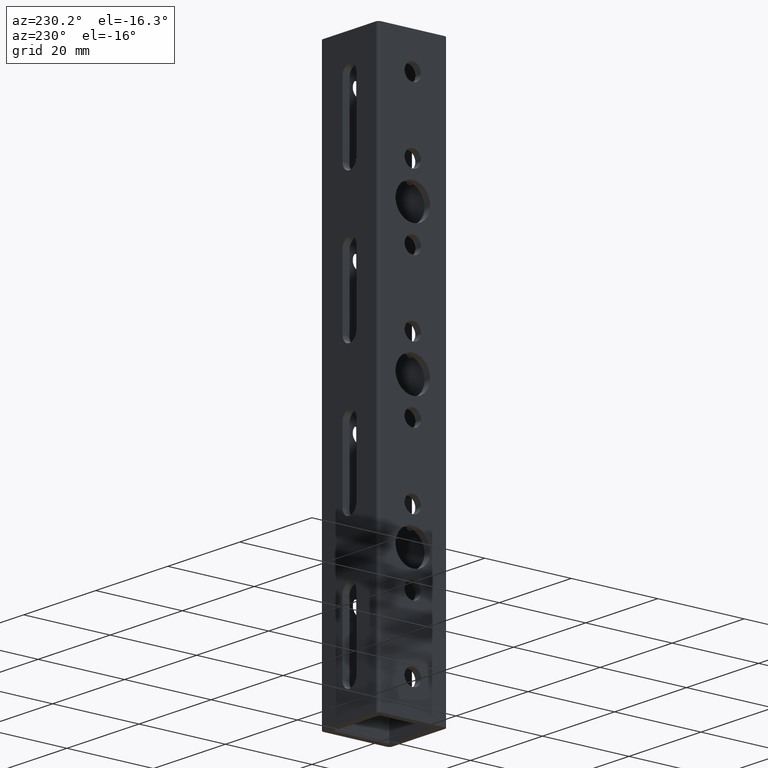
[diagram: clean part render]
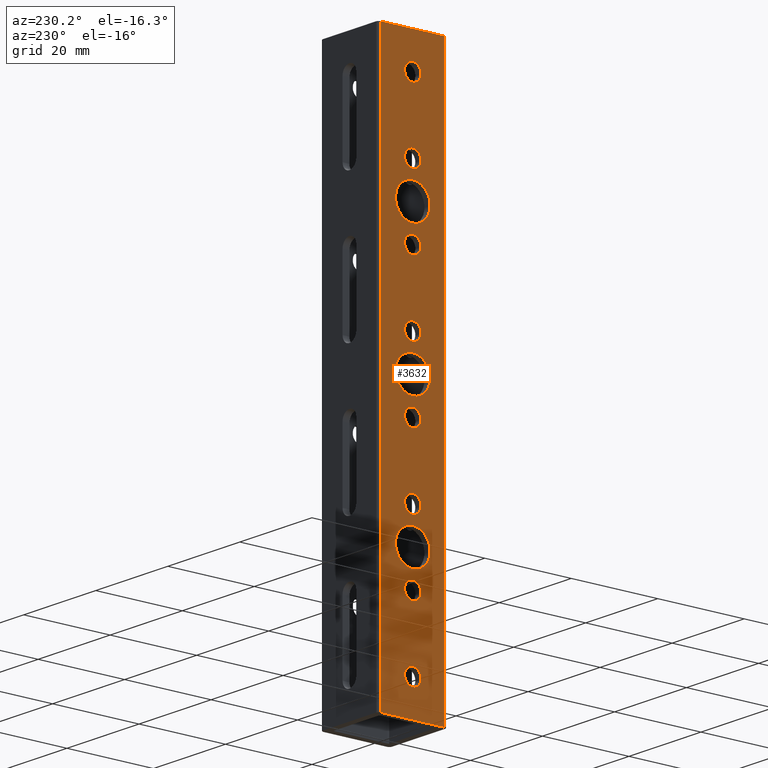
[diagram: same view with one face highlighted and labeled with its STEP entity id]
A machine part, auxiliary view. The second image highlights one B-rep face of the part: STEP entity #3632.
In plain terms, the highlighted planar face has unit normal (1, 0, 0).
Its self-contained STEP definition (entity closure, byte-faithful):
#9 = ORIENTED_EDGE ( 'NONE', *, *, #1773, .T. ) ;
#31 = CARTESIAN_POINT ( 'NONE',  ( -0.3149606299212600000, -0.3149606299212599500, 5.039370078740157400 ) ) ;
#32 = DIRECTION ( 'NONE',  ( 1.000000000000000000, 0.0000000000000000000, 0.0000000000000000000 ) ) ;
#61 = DIRECTION ( 'NONE',  ( 1.000000000000000000, 0.0000000000000000000, 0.0000000000000000000 ) ) ;
#84 = EDGE_CURVE ( 'NONE', #363, #1579, #3250, .T. ) ;
#119 = VERTEX_POINT ( 'NONE', #1013 ) ;
#138 = FACE_BOUND ( 'NONE', #2146, .T. ) ;
#147 = DIRECTION ( 'NONE',  ( 1.000000000000000000, 0.0000000000000000000, 0.0000000000000000000 ) ) ;
#159 = AXIS2_PLACEMENT_3D ( 'NONE', #2247, #860, #3375 ) ;
#165 = DIRECTION ( 'NONE',  ( 0.0000000000000000000, 1.000000000000000000, 0.0000000000000000000 ) ) ;
#174 = VERTEX_POINT ( 'NONE', #1594 ) ;
#225 = EDGE_CURVE ( 'NONE', #256, #302, #2800, .T. ) ;
#226 = DIRECTION ( 'NONE',  ( 1.000000000000000000, 0.0000000000000000000, 0.0000000000000000000 ) ) ;
#239 = FACE_OUTER_BOUND ( 'NONE', #2460, .T. ) ;
#241 = DIRECTION ( 'NONE',  ( 1.000000000000000000, 0.0000000000000000000, 0.0000000000000000000 ) ) ;
#242 = AXIS2_PLACEMENT_3D ( 'NONE', #2011, #32, #2567 ) ;
#251 = VERTEX_POINT ( 'NONE', #1363 ) ;
#256 = VERTEX_POINT ( 'NONE', #795 ) ;
#257 = EDGE_CURVE ( 'NONE', #2811, #2419, #2710, .T. ) ;
#278 = VERTEX_POINT ( 'NONE', #1938 ) ;
#288 = DIRECTION ( 'NONE',  ( 0.0000000000000000000, 0.0000000000000000000, -1.000000000000000000 ) ) ;
#294 = ORIENTED_EDGE ( 'NONE', *, *, #980, .T. ) ;
#302 = VERTEX_POINT ( 'NONE', #1146 ) ;
#318 = AXIS2_PLACEMENT_3D ( 'NONE', #3647, #1974, #288 ) ;
#340 = FACE_BOUND ( 'NONE', #2234, .T. ) ;
#343 = CARTESIAN_POINT ( 'NONE',  ( -0.3149606299212600000, -7.714310547738678500E-017, 0.8698818900000001600 ) ) ;
#350 = AXIS2_PLACEMENT_3D ( 'NONE', #2590, #924, #2875 ) ;
#363 = VERTEX_POINT ( 'NONE', #2739 ) ;
#398 = AXIS2_PLACEMENT_3D ( 'NONE', #688, #2649, #972 ) ;
#435 = VERTEX_POINT ( 'NONE', #3105 ) ;
#448 = ORIENTED_EDGE ( 'NONE', *, *, #84, .T. ) ;
#471 = AXIS2_PLACEMENT_3D ( 'NONE', #1688, #226, #2186 ) ;
#480 = CARTESIAN_POINT ( 'NONE',  ( -0.3149606299212600000, -3.765306763933287800E-016, 3.539566930000001200 ) ) ;
#520 = DIRECTION ( 'NONE',  ( 1.000000000000000000, 0.0000000000000000000, 0.0000000000000000000 ) ) ;
#535 = AXIS2_PLACEMENT_3D ( 'NONE', #2041, #61, #1758 ) ;
#537 = DIRECTION ( 'NONE',  ( 0.0000000000000000000, 0.0000000000000000000, -1.000000000000000000 ) ) ;
#540 = EDGE_LOOP ( 'NONE', ( #448, #584 ) ) ;
#584 = ORIENTED_EDGE ( 'NONE', *, *, #2141, .T. ) ;
#588 = CIRCLE ( 'NONE', #398, 0.07500000007529962500 ) ;
#604 = ORIENTED_EDGE ( 'NONE', *, *, #1543, .T. ) ;
#608 = DIRECTION ( 'NONE',  ( 1.000000000000000000, 0.0000000000000000000, 0.0000000000000000000 ) ) ;
#609 = PLANE ( 'NONE',  #242 ) ;
#623 = VECTOR ( 'NONE', #2750, 39.37007874015748100 ) ;
#669 = EDGE_LOOP ( 'NONE', ( #2366, #604 ) ) ;
#670 = FACE_BOUND ( 'NONE', #1135, .T. ) ;
#683 = LINE ( 'NONE', #3635, #2004 ) ;
#688 = CARTESIAN_POINT ( 'NONE',  ( -0.3149606299212600000, 0.0000000000000000000, 0.3149606300000000700 ) ) ;
#702 = ORIENTED_EDGE ( 'NONE', *, *, #3198, .T. ) ;
#707 = ORIENTED_EDGE ( 'NONE', *, *, #2825, .T. ) ;
#711 = EDGE_CURVE ( 'NONE', #2393, #119, #2485, .T. ) ;
#733 = CARTESIAN_POINT ( 'NONE',  ( -0.3149606299212600000, -4.628586328643206600E-016, 4.094488190000000700 ) ) ;
#781 = CARTESIAN_POINT ( 'NONE',  ( -0.3149606299212600000, 0.2899606299212598700, 17.63779527559055200 ) ) ;
#795 = CARTESIAN_POINT ( 'NONE',  ( -0.3149606299212600000, -2.993875709159420200E-016, 2.909645670000000200 ) ) ;
#801 = CARTESIAN_POINT ( 'NONE',  ( -0.3149606299212600000, -3.086109933851330200E-016, 3.779842519999999900 ) ) ;
#847 = AXIS2_PLACEMENT_3D ( 'NONE', #1928, #2199, #537 ) ;
#860 = DIRECTION ( 'NONE',  ( 1.000000000000000000, 0.0000000000000000000, 0.0000000000000000000 ) ) ;
#896 = CARTESIAN_POINT ( 'NONE',  ( -0.3149606299212600000, 0.0000000000000000000, 0.2399606299247004400 ) ) ;
#897 = EDGE_CURVE ( 'NONE', #174, #1233, #1210, .T. ) ;
#910 = DIRECTION ( 'NONE',  ( 1.000000000000000000, 0.0000000000000000000, 0.0000000000000000000 ) ) ;
#922 = EDGE_CURVE ( 'NONE', #2419, #2811, #1042, .T. ) ;
#924 = DIRECTION ( 'NONE',  ( 1.000000000000000000, 0.0000000000000000000, 0.0000000000000000000 ) ) ;
#948 = LINE ( 'NONE', #31, #2347 ) ;
#972 = DIRECTION ( 'NONE',  ( 0.0000000000000000000, 0.0000000000000000000, -1.000000000000000000 ) ) ;
#980 = EDGE_CURVE ( 'NONE', #1767, #2156, #948, .T. ) ;
#981 = CIRCLE ( 'NONE', #1516, 0.1574803149606297800 ) ;
#987 = CIRCLE ( 'NONE', #2830, 0.07500000000000015000 ) ;
#990 = DIRECTION ( 'NONE',  ( 1.000000000000000000, 0.0000000000000000000, 0.0000000000000000000 ) ) ;
#993 = CIRCLE ( 'NONE', #350, 0.1574803149606297800 ) ;
#1001 = FACE_BOUND ( 'NONE', #3559, .T. ) ;
#1013 = CARTESIAN_POINT ( 'NONE',  ( -0.3149606299212600000, -5.308168873481023500E-016, 4.799409450000000600 ) ) ;
#1029 = DIRECTION ( 'NONE',  ( 1.000000000000000000, 0.0000000000000000000, 0.0000000000000000000 ) ) ;
#1042 = CIRCLE ( 'NONE', #3335, 0.1574803149606299200 ) ;
#1047 = VERTEX_POINT ( 'NONE', #1880 ) ;
#1071 = ORIENTED_EDGE ( 'NONE', *, *, #2237, .T. ) ;
#1078 = CARTESIAN_POINT ( 'NONE',  ( -0.3149606299212600000, 0.2899606299212598700, 5.039370078740157400 ) ) ;
#1080 = CIRCLE ( 'NONE', #2140, 0.1574803149606295300 ) ;
#1087 = DIRECTION ( 'NONE',  ( 0.0000000000000000000, 0.0000000000000000000, -1.000000000000000000 ) ) ;
#1091 = FACE_BOUND ( 'NONE', #1324, .T. ) ;
#1093 = DIRECTION ( 'NONE',  ( 0.0000000000000000000, 0.0000000000000000000, -1.000000000000000000 ) ) ;
#1109 = CARTESIAN_POINT ( 'NONE',  ( -0.3149606299212600000, -2.222444654385552100E-016, 2.279724410000000000 ) ) ;
#1125 = CIRCLE ( 'NONE', #2214, 0.1574803149606295300 ) ;
#1135 = EDGE_LOOP ( 'NONE', ( #3418, #1402 ) ) ;
#1146 = CARTESIAN_POINT ( 'NONE',  ( -0.3149606299212600000, -3.085724219095471400E-016, 2.759645670000001200 ) ) ;
#1159 = EDGE_CURVE ( 'NONE', #435, #3305, #2561, .T. ) ;
#1210 = CIRCLE ( 'NONE', #2197, 0.07500000000000015000 ) ;
#1233 = VERTEX_POINT ( 'NONE', #480 ) ;
#1235 = EDGE_LOOP ( 'NONE', ( #2481, #702 ) ) ;
#1236 = DIRECTION ( 'NONE',  ( 0.0000000000000000000, 0.0000000000000000000, -1.000000000000000000 ) ) ;
#1250 = CARTESIAN_POINT ( 'NONE',  ( -0.3149606299212600000, -7.714310547738678500E-017, 0.9448818900000001100 ) ) ;
#1267 = EDGE_LOOP ( 'NONE', ( #3079, #1366 ) ) ;
#1281 = ORIENTED_EDGE ( 'NONE', *, *, #922, .T. ) ;
#1286 = ORIENTED_EDGE ( 'NONE', *, *, #2165, .T. ) ;
#1291 = DIRECTION ( 'NONE',  ( 1.000000000000000000, 0.0000000000000000000, 0.0000000000000000000 ) ) ;
#1305 = DIRECTION ( 'NONE',  ( 1.000000000000000000, 0.0000000000000000000, 0.0000000000000000000 ) ) ;
#1324 = EDGE_LOOP ( 'NONE', ( #2801, #1748 ) ) ;
#1347 = DIRECTION ( 'NONE',  ( 0.0000000000000000000, 0.0000000000000000000, -1.000000000000000000 ) ) ;
#1358 = DIRECTION ( 'NONE',  ( 1.000000000000000000, 0.0000000000000000000, 0.0000000000000000000 ) ) ;
#1361 = CARTESIAN_POINT ( 'NONE',  ( -0.3149606299212600000, -3.085724219095471400E-016, 2.834645670000000500 ) ) ;
#1363 = CARTESIAN_POINT ( 'NONE',  ( -0.3149606299212600000, -3.086109933851330200E-016, 3.622362205039370700 ) ) ;
#1366 = ORIENTED_EDGE ( 'NONE', *, *, #2429, .T. ) ;
#1379 = CIRCLE ( 'NONE', #318, 0.07499999999999988600 ) ;
#1396 = ORIENTED_EDGE ( 'NONE', *, *, #1609, .T. ) ;
#1402 = ORIENTED_EDGE ( 'NONE', *, *, #2200, .T. ) ;
#1434 = VERTEX_POINT ( 'NONE', #2385 ) ;
#1477 = VERTEX_POINT ( 'NONE', #1109 ) ;
#1490 = ORIENTED_EDGE ( 'NONE', *, *, #257, .T. ) ;
#1516 = AXIS2_PLACEMENT_3D ( 'NONE', #1839, #147, #2117 ) ;
#1522 = EDGE_CURVE ( 'NONE', #302, #256, #2921, .T. ) ;
#1527 = DIRECTION ( 'NONE',  ( 1.000000000000000000, 0.0000000000000000000, 0.0000000000000000000 ) ) ;
#1543 = EDGE_CURVE ( 'NONE', #119, #2393, #2833, .T. ) ;
#1579 = VERTEX_POINT ( 'NONE', #2258 ) ;
#1594 = CARTESIAN_POINT ( 'NONE',  ( -0.3149606299212600000, -3.857155273869339500E-016, 3.389566930000000900 ) ) ;
#1609 = EDGE_CURVE ( 'NONE', #3478, #1767, #683, .T. ) ;
#1656 = CARTESIAN_POINT ( 'NONE',  ( -0.3149606299212600000, -3.857155273869339500E-016, 3.464566930000001000 ) ) ;
#1688 = CARTESIAN_POINT ( 'NONE',  ( -0.3149606299212600000, -3.085724219095471400E-016, 2.834645670000000500 ) ) ;
#1709 = EDGE_CURVE ( 'NONE', #2656, #3206, #2657, .T. ) ;
#1714 = CARTESIAN_POINT ( 'NONE',  ( -0.3149606299212600000, -1.543054966925665100E-016, 2.362362205039370000 ) ) ;
#1721 = ORIENTED_EDGE ( 'NONE', *, *, #225, .T. ) ;
#1726 = AXIS2_PLACEMENT_3D ( 'NONE', #1250, #1527, #3277 ) ;
#1746 = FACE_BOUND ( 'NONE', #2323, .T. ) ;
#1748 = ORIENTED_EDGE ( 'NONE', *, *, #2475, .T. ) ;
#1758 = DIRECTION ( 'NONE',  ( 0.0000000000000000000, 0.0000000000000000000, -1.000000000000000000 ) ) ;
#1767 = VERTEX_POINT ( 'NONE', #2600 ) ;
#1773 = EDGE_CURVE ( 'NONE', #3305, #435, #2207, .T. ) ;
#1780 = VECTOR ( 'NONE', #1956, 39.37007874015748100 ) ;
#1816 = AXIS2_PLACEMENT_3D ( 'NONE', #733, #2694, #1347 ) ;
#1839 = CARTESIAN_POINT ( 'NONE',  ( -0.3149606299212600000, -1.543054966925665100E-016, 2.519842520000000100 ) ) ;
#1870 = CARTESIAN_POINT ( 'NONE',  ( -0.3149606299212600000, -5.400017383417074700E-016, 4.724409450000000500 ) ) ;
#1880 = CARTESIAN_POINT ( 'NONE',  ( -0.3149606299212600000, 9.184851002826689300E-018, 0.3899606300752996900 ) ) ;
#1928 = CARTESIAN_POINT ( 'NONE',  ( -0.3149606299212600000, 0.0000000000000000000, 1.259842520000000300 ) ) ;
#1931 = CARTESIAN_POINT ( 'NONE',  ( -0.3149606299212600000, -7.714310547738678500E-017, 0.9448818900000001100 ) ) ;
#1933 = DIRECTION ( 'NONE',  ( 0.0000000000000000000, 0.0000000000000000000, -1.000000000000000000 ) ) ;
#1938 = CARTESIAN_POINT ( 'NONE',  ( -0.3149606299212600000, -1.350197203280413000E-016, 2.677322834960629700 ) ) ;
#1949 = CARTESIAN_POINT ( 'NONE',  ( -0.3149606299212600000, -0.2899606299212599300, 0.0000000000000000000 ) ) ;
#1956 = DIRECTION ( 'NONE',  ( -0.0000000000000000000, -1.000000000000000000, -0.0000000000000000000 ) ) ;
#1962 = AXIS2_PLACEMENT_3D ( 'NONE', #3046, #1358, #3321 ) ;
#1974 = DIRECTION ( 'NONE',  ( 1.000000000000000000, 0.0000000000000000000, 0.0000000000000000000 ) ) ;
#1987 = FACE_BOUND ( 'NONE', #1267, .T. ) ;
#2004 = VECTOR ( 'NONE', #2998, 39.37007874015748100 ) ;
#2011 = CARTESIAN_POINT ( 'NONE',  ( -0.3149606299212600000, -0.3149606299212599500, 17.63779527559055200 ) ) ;
#2041 = CARTESIAN_POINT ( 'NONE',  ( -0.3149606299212600000, -4.628586328643206600E-016, 4.094488190000000700 ) ) ;
#2074 = ORIENTED_EDGE ( 'NONE', *, *, #3279, .T. ) ;
#2117 = DIRECTION ( 'NONE',  ( 0.0000000000000000000, 0.0000000000000000000, -1.000000000000000000 ) ) ;
#2140 = AXIS2_PLACEMENT_3D ( 'NONE', #801, #2763, #1093 ) ;
#2141 = EDGE_CURVE ( 'NONE', #1579, #363, #3401, .T. ) ;
#2146 = EDGE_LOOP ( 'NONE', ( #3264, #1721 ) ) ;
#2156 = VERTEX_POINT ( 'NONE', #1078 ) ;
#2159 = CARTESIAN_POINT ( 'NONE',  ( -0.3149606299212600000, 0.2899606299212598700, 0.0000000000000000000 ) ) ;
#2165 = EDGE_CURVE ( 'NONE', #2505, #251, #1080, .T. ) ;
#2182 = CARTESIAN_POINT ( 'NONE',  ( -0.3149606299212600000, -2.314293164321603300E-016, 2.204724410000000300 ) ) ;
#2186 = DIRECTION ( 'NONE',  ( 0.0000000000000000000, 0.0000000000000000000, -1.000000000000000000 ) ) ;
#2197 = AXIS2_PLACEMENT_3D ( 'NONE', #2865, #910, #3430 ) ;
#2199 = DIRECTION ( 'NONE',  ( 1.000000000000000000, 0.0000000000000000000, 0.0000000000000000000 ) ) ;
#2200 = EDGE_CURVE ( 'NONE', #3206, #2656, #2478, .T. ) ;
#2202 = DIRECTION ( 'NONE',  ( 0.0000000000000000000, 0.0000000000000000000, -1.000000000000000000 ) ) ;
#2207 = CIRCLE ( 'NONE', #535, 0.07500000000000015000 ) ;
#2214 = AXIS2_PLACEMENT_3D ( 'NONE', #2667, #990, #2946 ) ;
#2234 = EDGE_LOOP ( 'NONE', ( #3303, #9 ) ) ;
#2237 = EDGE_CURVE ( 'NONE', #3376, #3478, #3270, .T. ) ;
#2247 = CARTESIAN_POINT ( 'NONE',  ( -0.3149606299212600000, -5.400017383417074700E-016, 4.724409450000000500 ) ) ;
#2258 = CARTESIAN_POINT ( 'NONE',  ( -0.3149606299212600000, -1.451013599611683800E-016, 1.649803150000000300 ) ) ;
#2259 = AXIS2_PLACEMENT_3D ( 'NONE', #2182, #520, #2476 ) ;
#2280 = CARTESIAN_POINT ( 'NONE',  ( -0.3149606299212600000, 0.0000000000000000000, 1.259842520000000300 ) ) ;
#2302 = AXIS2_PLACEMENT_3D ( 'NONE', #1361, #3602, #1087 ) ;
#2323 = EDGE_LOOP ( 'NONE', ( #2074, #2407 ) ) ;
#2335 = AXIS2_PLACEMENT_3D ( 'NONE', #1931, #241, #2202 ) ;
#2347 = VECTOR ( 'NONE', #165, 39.37007874015748100 ) ;
#2366 = ORIENTED_EDGE ( 'NONE', *, *, #711, .T. ) ;
#2367 = CARTESIAN_POINT ( 'NONE',  ( -0.3149606299212600000, 0.0000000000000000000, 1.102362205039370200 ) ) ;
#2385 = CARTESIAN_POINT ( 'NONE',  ( -0.3149606299212600000, -2.314293164321603300E-016, 2.129724410000000100 ) ) ;
#2393 = VERTEX_POINT ( 'NONE', #2451 ) ;
#2407 = ORIENTED_EDGE ( 'NONE', *, *, #2669, .T. ) ;
#2415 = AXIS2_PLACEMENT_3D ( 'NONE', #2967, #1291, #3259 ) ;
#2419 = VERTEX_POINT ( 'NONE', #3036 ) ;
#2429 = EDGE_CURVE ( 'NONE', #1477, #1434, #3315, .T. ) ;
#2451 = CARTESIAN_POINT ( 'NONE',  ( -0.3149606299212600000, -5.400017383417074700E-016, 4.649409450000001200 ) ) ;
#2460 = EDGE_LOOP ( 'NONE', ( #1071, #1396, #294, #3387 ) ) ;
#2475 = EDGE_CURVE ( 'NONE', #1233, #174, #987, .T. ) ;
#2476 = DIRECTION ( 'NONE',  ( 0.0000000000000000000, 0.0000000000000000000, -1.000000000000000000 ) ) ;
#2478 = CIRCLE ( 'NONE', #2335, 0.07500000000000002500 ) ;
#2481 = ORIENTED_EDGE ( 'NONE', *, *, #2900, .T. ) ;
#2485 = CIRCLE ( 'NONE', #3408, 0.07499999999999960900 ) ;
#2490 = FACE_BOUND ( 'NONE', #3637, .T. ) ;
#2505 = VERTEX_POINT ( 'NONE', #3347 ) ;
#2536 = EDGE_CURVE ( 'NONE', #1434, #1477, #1379, .T. ) ;
#2561 = CIRCLE ( 'NONE', #1816, 0.07500000000000015000 ) ;
#2567 = DIRECTION ( 'NONE',  ( 0.0000000000000000000, 0.0000000000000000000, -1.000000000000000000 ) ) ;
#2588 = VERTEX_POINT ( 'NONE', #1714 ) ;
#2590 = CARTESIAN_POINT ( 'NONE',  ( -0.3149606299212600000, -1.543054966925665100E-016, 2.519842520000000100 ) ) ;
#2600 = CARTESIAN_POINT ( 'NONE',  ( -0.3149606299212600000, -0.2899606299212599300, 5.039370078740157400 ) ) ;
#2618 = DIRECTION ( 'NONE',  ( 0.0000000000000000000, 0.0000000000000000000, -1.000000000000000000 ) ) ;
#2649 = DIRECTION ( 'NONE',  ( 1.000000000000000000, 0.0000000000000000000, 0.0000000000000000000 ) ) ;
#2656 = VERTEX_POINT ( 'NONE', #343 ) ;
#2657 = CIRCLE ( 'NONE', #1726, 0.07500000000000002500 ) ;
#2667 = CARTESIAN_POINT ( 'NONE',  ( -0.3149606299212600000, -3.086109933851330200E-016, 3.779842519999999900 ) ) ;
#2669 = EDGE_CURVE ( 'NONE', #278, #2588, #993, .T. ) ;
#2687 = CARTESIAN_POINT ( 'NONE',  ( -0.3149606299212600000, -4.536737818707155400E-016, 4.169488190000000900 ) ) ;
#2694 = DIRECTION ( 'NONE',  ( 1.000000000000000000, 0.0000000000000000000, 0.0000000000000000000 ) ) ;
#2703 = CARTESIAN_POINT ( 'NONE',  ( -0.3149606299212600000, 0.0000000000000000000, 0.3149606300000000700 ) ) ;
#2710 = CIRCLE ( 'NONE', #847, 0.1574803149606299200 ) ;
#2730 = FACE_BOUND ( 'NONE', #540, .T. ) ;
#2739 = CARTESIAN_POINT ( 'NONE',  ( -0.3149606299212600000, -1.542862109547735700E-016, 1.499803150000000400 ) ) ;
#2750 = DIRECTION ( 'NONE',  ( 0.0000000000000000000, 0.0000000000000000000, -1.000000000000000000 ) ) ;
#2763 = DIRECTION ( 'NONE',  ( 1.000000000000000000, 0.0000000000000000000, 0.0000000000000000000 ) ) ;
#2800 = CIRCLE ( 'NONE', #471, 0.07499999999999960900 ) ;
#2801 = ORIENTED_EDGE ( 'NONE', *, *, #897, .T. ) ;
#2811 = VERTEX_POINT ( 'NONE', #2367 ) ;
#2825 = EDGE_CURVE ( 'NONE', #251, #2505, #1125, .T. ) ;
#2830 = AXIS2_PLACEMENT_3D ( 'NONE', #1656, #3610, #1933 ) ;
#2833 = CIRCLE ( 'NONE', #159, 0.07499999999999960900 ) ;
#2865 = CARTESIAN_POINT ( 'NONE',  ( -0.3149606299212600000, -3.857155273869339500E-016, 3.464566930000001000 ) ) ;
#2875 = DIRECTION ( 'NONE',  ( 0.0000000000000000000, 0.0000000000000000000, -1.000000000000000000 ) ) ;
#2900 = EDGE_CURVE ( 'NONE', #3643, #1047, #3109, .T. ) ;
#2921 = CIRCLE ( 'NONE', #2302, 0.07499999999999960900 ) ;
#2946 = DIRECTION ( 'NONE',  ( 0.0000000000000000000, 0.0000000000000000000, -1.000000000000000000 ) ) ;
#2967 = CARTESIAN_POINT ( 'NONE',  ( -0.3149606299212600000, -1.542862109547735700E-016, 1.574803150000000400 ) ) ;
#2987 = DIRECTION ( 'NONE',  ( 0.0000000000000000000, 0.0000000000000000000, -1.000000000000000000 ) ) ;
#2998 = DIRECTION ( 'NONE',  ( -0.0000000000000000000, -0.0000000000000000000, 1.000000000000000000 ) ) ;
#3036 = CARTESIAN_POINT ( 'NONE',  ( -0.3149606299212600000, 1.928577636452525500E-017, 1.417322834960629900 ) ) ;
#3046 = CARTESIAN_POINT ( 'NONE',  ( -0.3149606299212600000, -1.542862109547735700E-016, 1.574803150000000400 ) ) ;
#3079 = ORIENTED_EDGE ( 'NONE', *, *, #2536, .T. ) ;
#3083 = CARTESIAN_POINT ( 'NONE',  ( -0.3149606299212600000, -0.3149606299212599500, 0.0000000000000000000 ) ) ;
#3105 = CARTESIAN_POINT ( 'NONE',  ( -0.3149606299212600000, -4.628586328643206600E-016, 4.019488190000000600 ) ) ;
#3109 = CIRCLE ( 'NONE', #3355, 0.07500000007529962500 ) ;
#3198 = EDGE_CURVE ( 'NONE', #1047, #3643, #588, .T. ) ;
#3206 = VERTEX_POINT ( 'NONE', #3225 ) ;
#3225 = CARTESIAN_POINT ( 'NONE',  ( -0.3149606299212600000, -6.795825448378161900E-017, 1.019881890000000200 ) ) ;
#3245 = FACE_BOUND ( 'NONE', #669, .T. ) ;
#3250 = CIRCLE ( 'NONE', #2415, 0.07499999999999988600 ) ;
#3259 = DIRECTION ( 'NONE',  ( 0.0000000000000000000, 0.0000000000000000000, -1.000000000000000000 ) ) ;
#3264 = ORIENTED_EDGE ( 'NONE', *, *, #1522, .T. ) ;
#3270 = LINE ( 'NONE', #3083, #1780 ) ;
#3277 = DIRECTION ( 'NONE',  ( 0.0000000000000000000, 0.0000000000000000000, -1.000000000000000000 ) ) ;
#3279 = EDGE_CURVE ( 'NONE', #2588, #278, #981, .T. ) ;
#3303 = ORIENTED_EDGE ( 'NONE', *, *, #1159, .T. ) ;
#3305 = VERTEX_POINT ( 'NONE', #2687 ) ;
#3315 = CIRCLE ( 'NONE', #2259, 0.07499999999999988600 ) ;
#3321 = DIRECTION ( 'NONE',  ( 0.0000000000000000000, 0.0000000000000000000, -1.000000000000000000 ) ) ;
#3335 = AXIS2_PLACEMENT_3D ( 'NONE', #2280, #608, #2618 ) ;
#3347 = CARTESIAN_POINT ( 'NONE',  ( -0.3149606299212600000, -2.893252170206078300E-016, 3.937322834960629500 ) ) ;
#3355 = AXIS2_PLACEMENT_3D ( 'NONE', #2703, #1029, #2987 ) ;
#3375 = DIRECTION ( 'NONE',  ( 0.0000000000000000000, 0.0000000000000000000, -1.000000000000000000 ) ) ;
#3376 = VERTEX_POINT ( 'NONE', #2159 ) ;
#3381 = EDGE_CURVE ( 'NONE', #2156, #3376, #3436, .T. ) ;
#3387 = ORIENTED_EDGE ( 'NONE', *, *, #3381, .T. ) ;
#3401 = CIRCLE ( 'NONE', #1962, 0.07499999999999988600 ) ;
#3408 = AXIS2_PLACEMENT_3D ( 'NONE', #1870, #1305, #1236 ) ;
#3418 = ORIENTED_EDGE ( 'NONE', *, *, #1709, .T. ) ;
#3430 = DIRECTION ( 'NONE',  ( 0.0000000000000000000, 0.0000000000000000000, -1.000000000000000000 ) ) ;
#3436 = LINE ( 'NONE', #781, #623 ) ;
#3477 = FACE_BOUND ( 'NONE', #1235, .T. ) ;
#3478 = VERTEX_POINT ( 'NONE', #1949 ) ;
#3559 = EDGE_LOOP ( 'NONE', ( #707, #1286 ) ) ;
#3602 = DIRECTION ( 'NONE',  ( 1.000000000000000000, 0.0000000000000000000, 0.0000000000000000000 ) ) ;
#3610 = DIRECTION ( 'NONE',  ( 1.000000000000000000, 0.0000000000000000000, 0.0000000000000000000 ) ) ;
#3632 = ADVANCED_FACE ( 'NONE', ( #3477, #670, #2730, #1987, #138, #1091, #340, #3245, #2490, #1746, #1001, #239 ), #609, .F. ) ;
#3635 = CARTESIAN_POINT ( 'NONE',  ( -0.3149606299212600000, -0.2899606299212599300, 17.63779527559055200 ) ) ;
#3637 = EDGE_LOOP ( 'NONE', ( #1490, #1281 ) ) ;
#3643 = VERTEX_POINT ( 'NONE', #896 ) ;
#3647 = CARTESIAN_POINT ( 'NONE',  ( -0.3149606299212600000, -2.314293164321603300E-016, 2.204724410000000300 ) ) ;